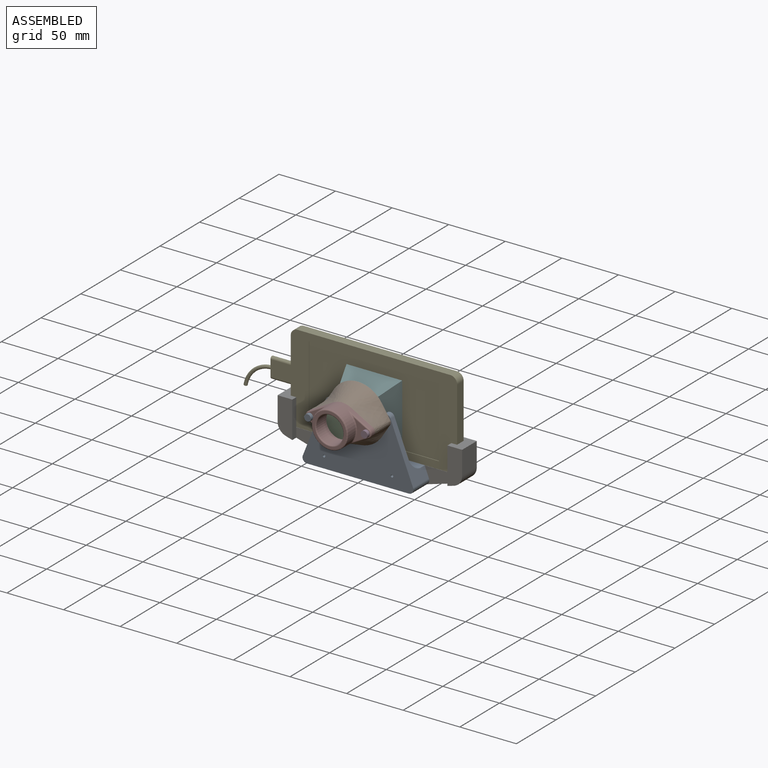
[diagram: assembled view]
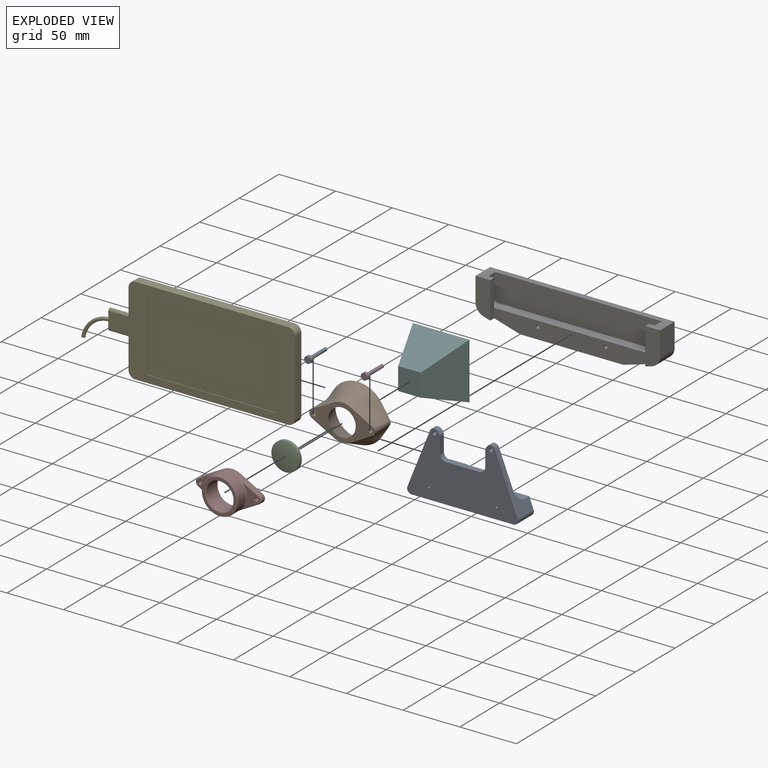
[diagram: exploded view]
GUIDED TOUR — MATED ASSEMBLY (Onshape document 5909d2e9807926100befe537, AutoMate assembly 5909d2e9807926100befe537_34f45d4617c0526ea24c7dd1_6c05a3f8506e0b4de2d8d72f_default)

This assembly has 9 components, labeled P0..P8 below (a component is one placed occurrence of a part; the same part can appear more than once), held together by 7 mates. A mate is a constraint between two components; its type names the relative motion it leaves free:
  FASTENED — locks the two components together rigidly (no relative motion).
Axis/direction vectors are unit vectors and 'through' points are millimeter coordinates, both in the assembly's world frame.

MATES
  1. FASTENED "Lens to Eyepiece": P7 <-> P2, direction (0.000, 1.000, 0.000) through (0.00, -23.00, 31.71) mm
  2. FASTENED "Fastened 3": P3 <-> P7, direction (0.000, 1.000, 0.000) through (25.00, -25.00, 31.71) mm
  3. FASTENED "Rear Tri to Slot": P0 <-> P6, direction (0.000, 1.000, 0.000) through (0.00, 20.00, -5.68) mm
  4. FASTENED "Fastened 4": P5 <-> P2, direction (0.000, -1.000, 0.000) through (0.00, -18.21, 31.71) mm
  5. FASTENED "Slot to Phone": P6 <-> P4, direction (0.000, 0.000, 1.000) through (0.00, 24.25, -5.68) mm
  6. FASTENED "Fastened 5": P1 <-> P7, direction (0.000, -1.000, 0.000) through (0.00, -20.00, 31.71) mm
  7. FASTENED "Fastened 2": P8 <-> P7, direction (0.000, 1.000, 0.000) through (-25.00, -25.00, 31.71) mm

ASSEMBLY ORDER
  1. P1 — the base component [order heuristic]
  2. P2 [order verified]
  3. P0 [order verified]
  4. P7 [order verified]
  5. P5 — core [order heuristic]
  6. P8 [order verified]
  7. P3 [order verified]
  8. P6 [order verified]
  9. P4 [order verified]
(P7 verified with a relaxed clearance tolerance: the source model stores slight part interference there.)
Order-tag legend:
  [order verified] — this step's position reverses a verified removal order: the component was checked to insert without passing through the ones already placed.
  [order heuristic] — the first 2 components form the assembly's core: parts whose collision-free extraction could not be verified, listed in mate-graph order.

Of the 9 components, 1 carries the full construction recipe — the FeatureScript program that regenerates the part's solid from scratch; the rest are supplied as boundary geometry only.
Each toured component is shown spotlighted twice — in the assembled view, then in the exploded view, where a leader line traces a displaced component back to its assembled socket (saturated green if recipe-attached, orange if geometry-only; every other component desaturated gray) — followed by its recipe or geometry summary and the mates that hold it.
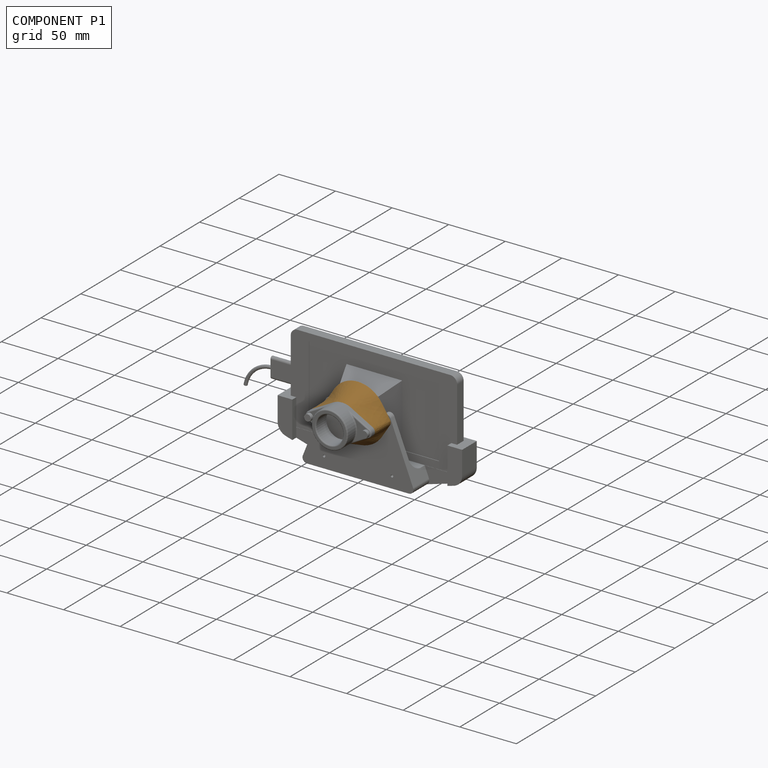
[diagram: component P1 — assembled]
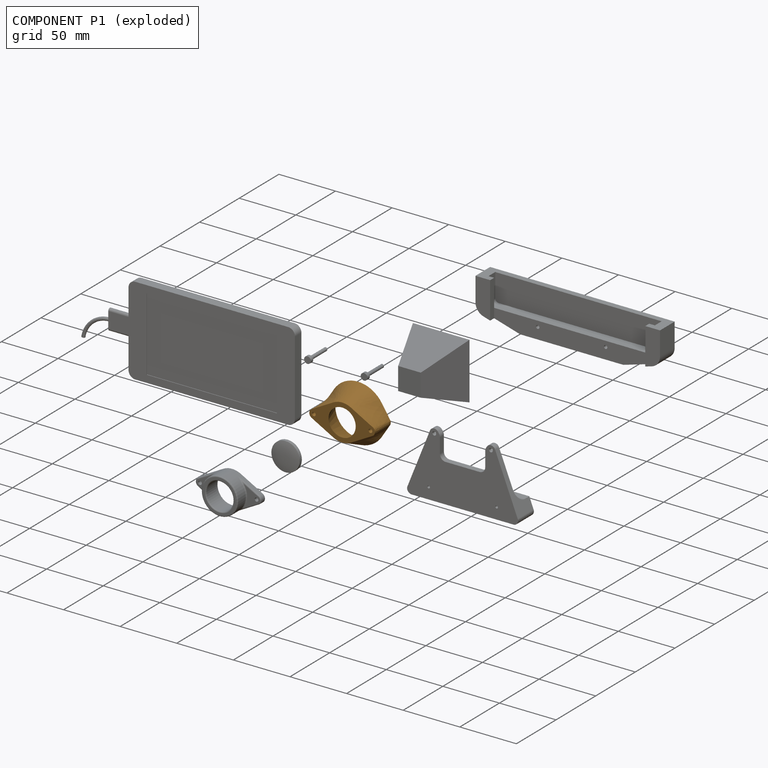
[diagram: component P1 — exploded]
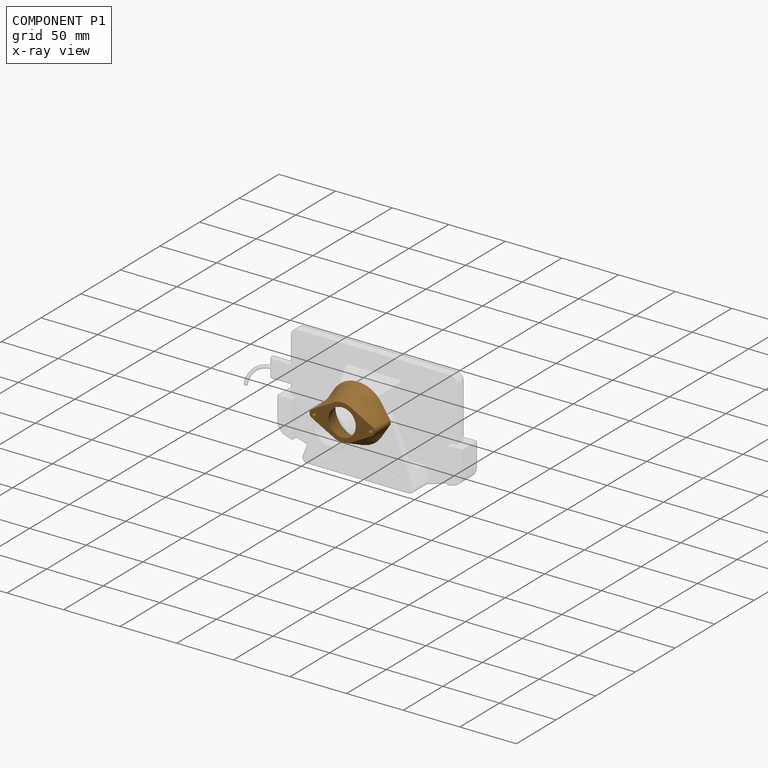
[diagram: component P1 — x-ray view]
COMPONENT P1 — geometry summary (no construction recipe available for this part):
  bounding box: 58.0 x 50.0 x 20.0 mm
  B-rep topology: 1 solid, 6 faces, 52 edges
  volume: 13882 mm^3 (24% of its bounding box)
  symmetry: 2-fold rotationally symmetric about the z axis; mirror-symmetric across its x mid-plane, y mid-plane
Held by: FASTENED mate "Fastened 5" to P7.
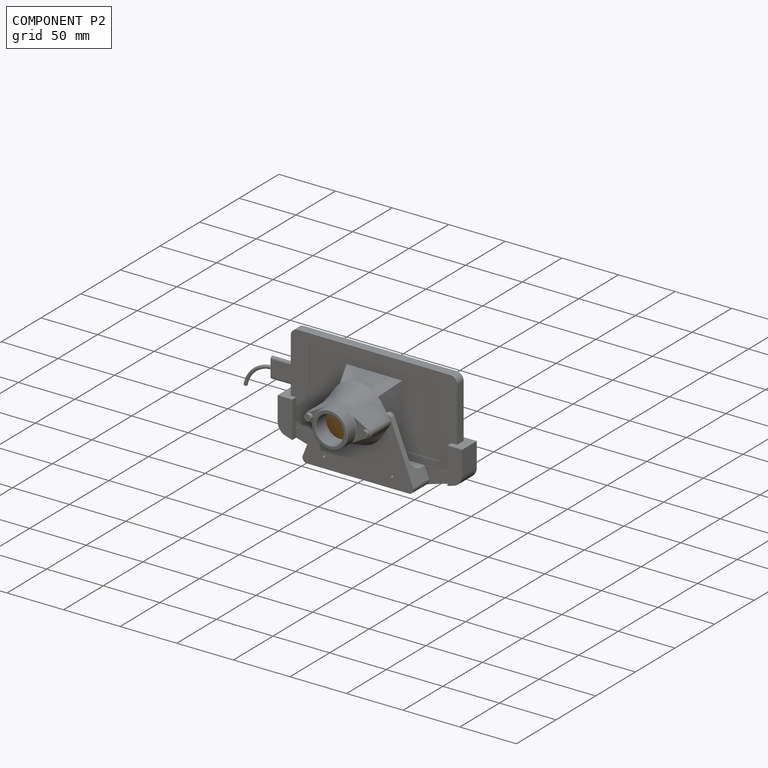
[diagram: component P2 — assembled]
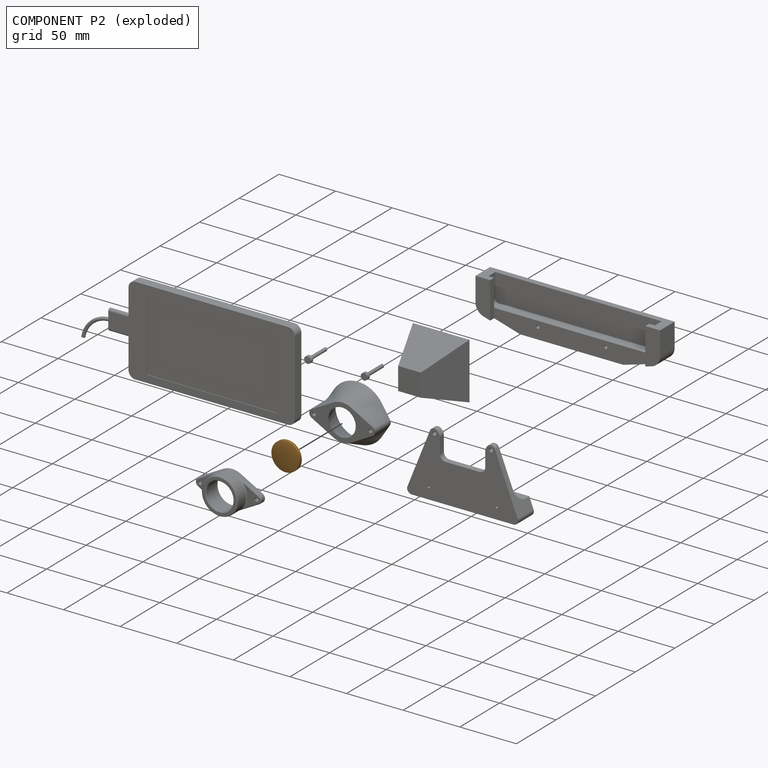
[diagram: component P2 — exploded]
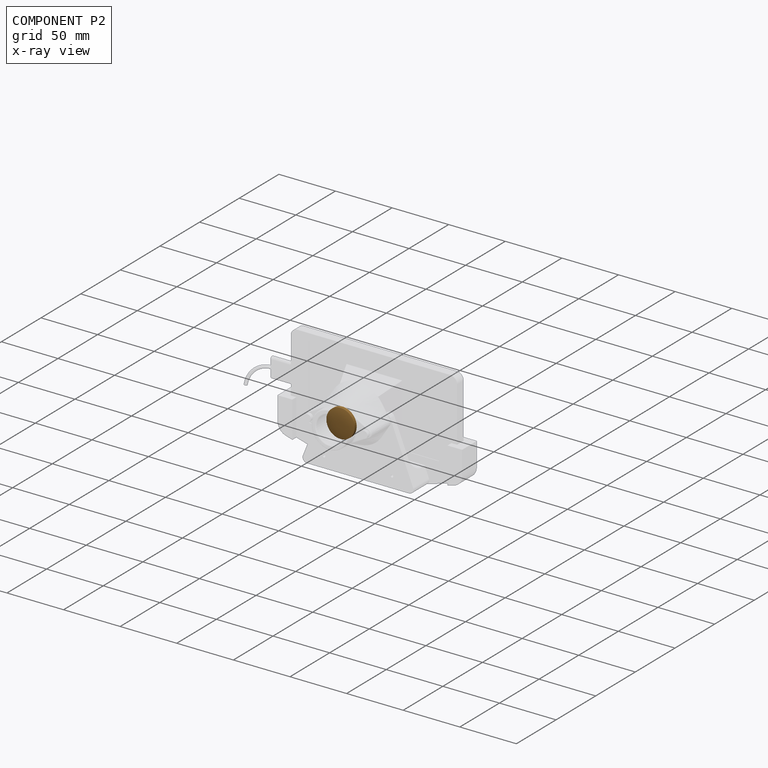
[diagram: component P2 — x-ray view]
COMPONENT P2 — geometry summary (no construction recipe available for this part):
  bounding box: 25.0 x 25.0 x 5.0 mm
  B-rep topology: 1 solid, 3 faces, 16 edges
  volume: 1977 mm^3 (63% of its bounding box)
  symmetry: 2-fold rotationally symmetric about the x axis; 2-fold rotationally symmetric about the y axis; revolution-symmetric about the z axis through its bounding-box center; mirror-symmetric across its x mid-plane, y mid-plane, z mid-plane
Held by: FASTENED mate "Lens to Eyepiece" to P7; FASTENED mate "Fastened 4" to P5.
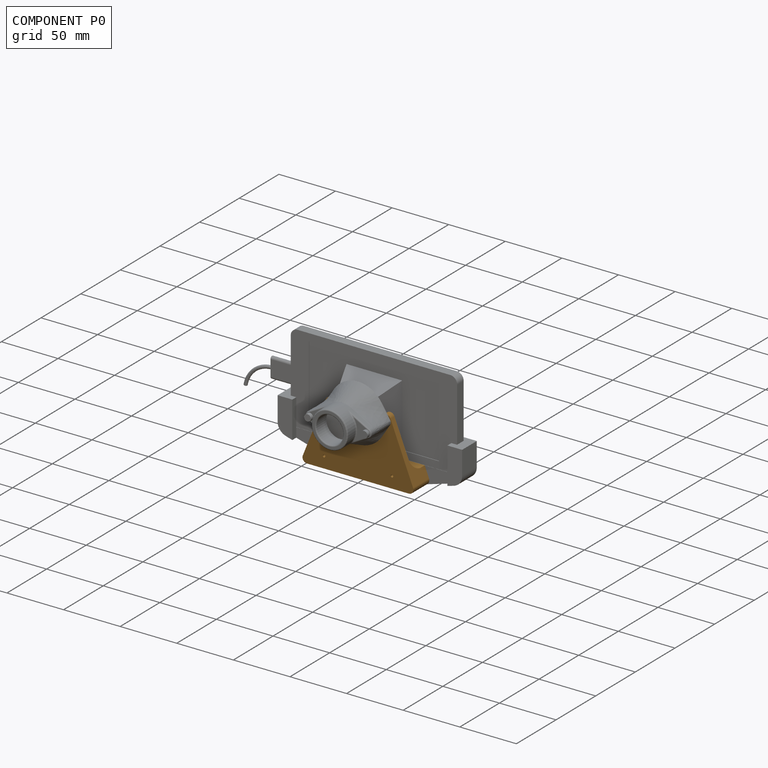
[diagram: component P0 — assembled]
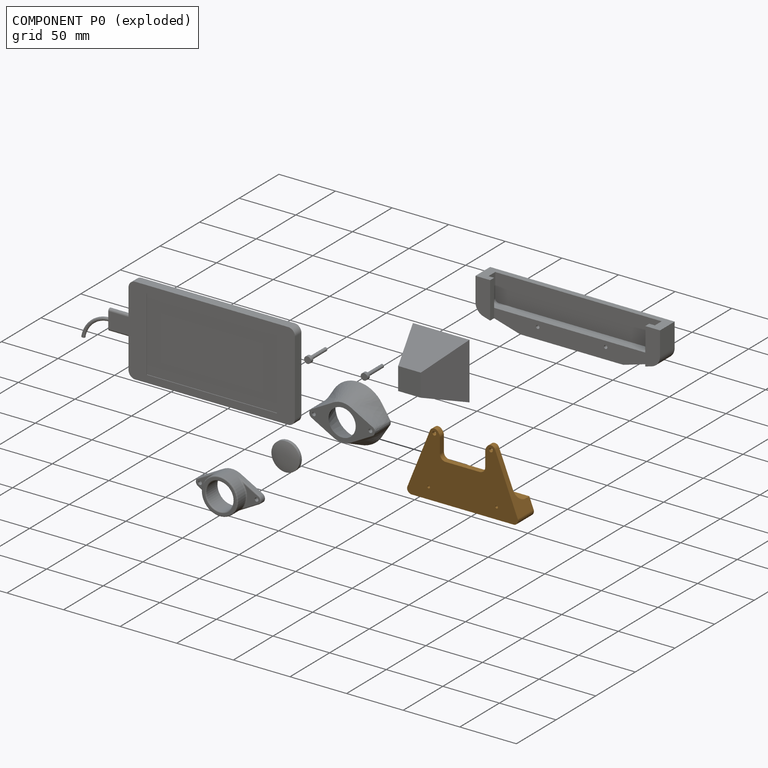
[diagram: component P0 — exploded]
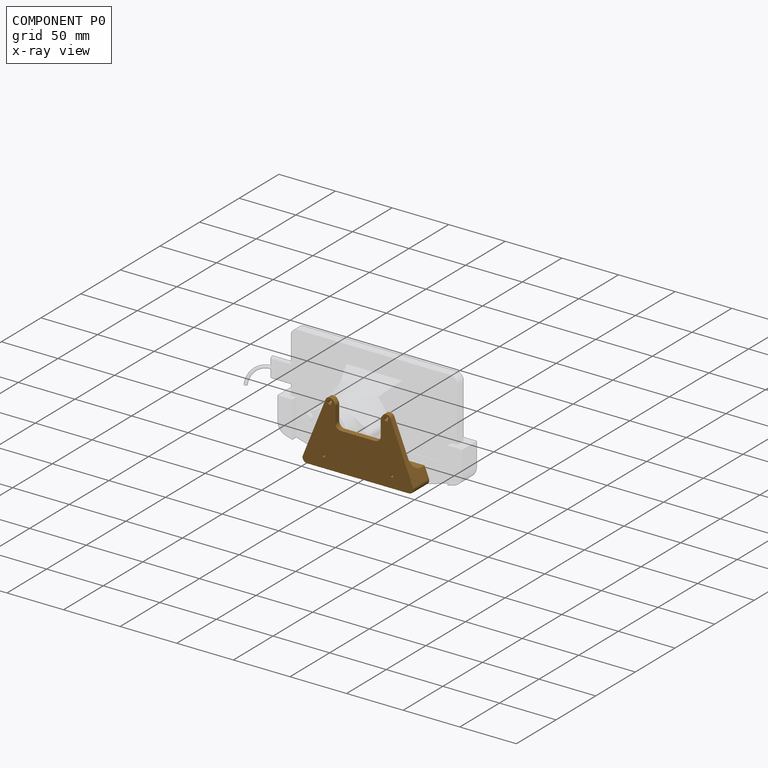
[diagram: component P0 — x-ray view]
COMPONENT P0 — geometry summary (no construction recipe available for this part):
  bounding box: 98.0 x 58.0 x 20.0 mm
  B-rep topology: 1 solid, 39 faces, 210 edges
  volume: 40751 mm^3 (36% of its bounding box)
  symmetry: mirror-symmetric across its x mid-plane
Held by: FASTENED mate "Rear Tri to Slot" to P6.
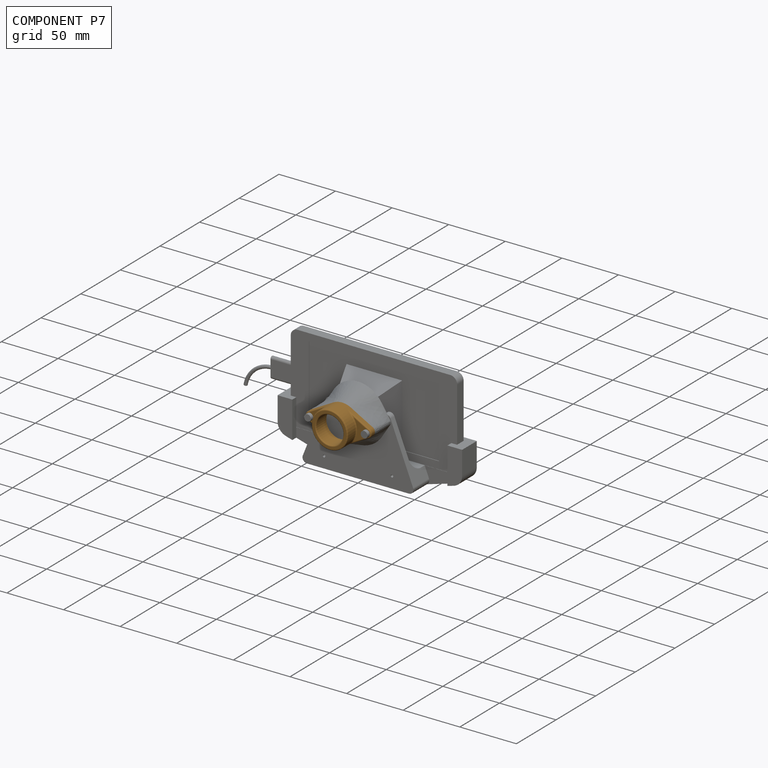
[diagram: component P7 — assembled]
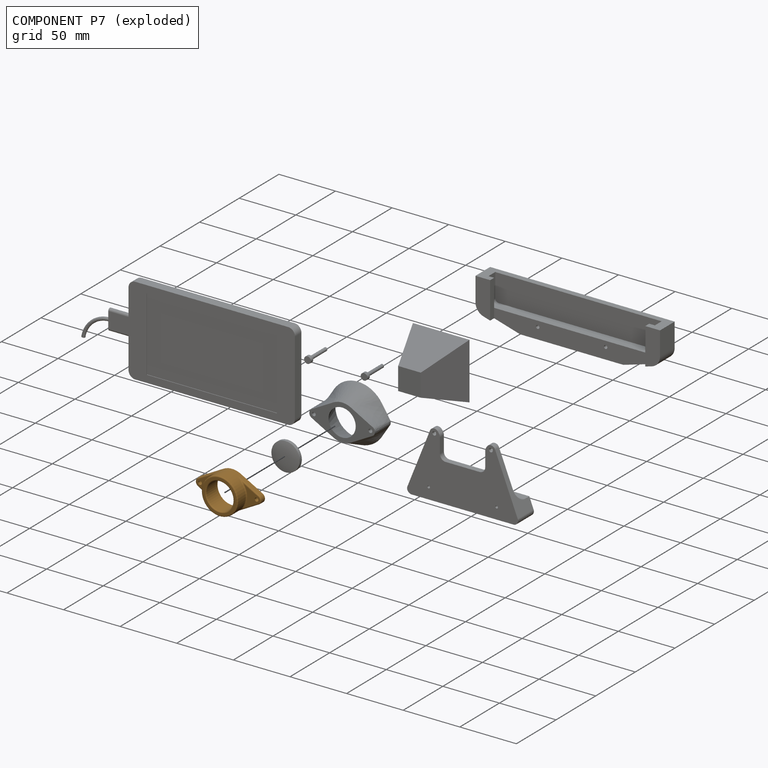
[diagram: component P7 — exploded]
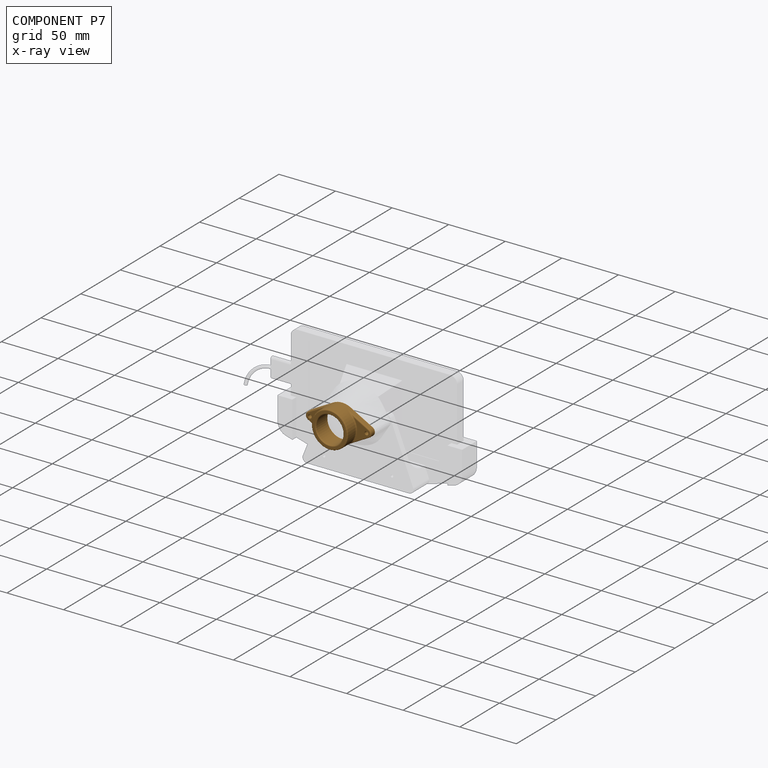
[diagram: component P7 — x-ray view]
COMPONENT P7 — geometry summary (no construction recipe available for this part):
  bounding box: 58.7 x 34.6 x 16.0 mm
  B-rep topology: 1 solid, 30 faces, 144 edges
  volume: 7119 mm^3 (22% of its bounding box)
  symmetry: 2-fold rotationally symmetric about the z axis; mirror-symmetric across its x mid-plane, y mid-plane
Held by: FASTENED mate "Lens to Eyepiece" to P2; FASTENED mate "Fastened 3" to P3; FASTENED mate "Fastened 5" to P1; FASTENED mate "Fastened 2" to P8.
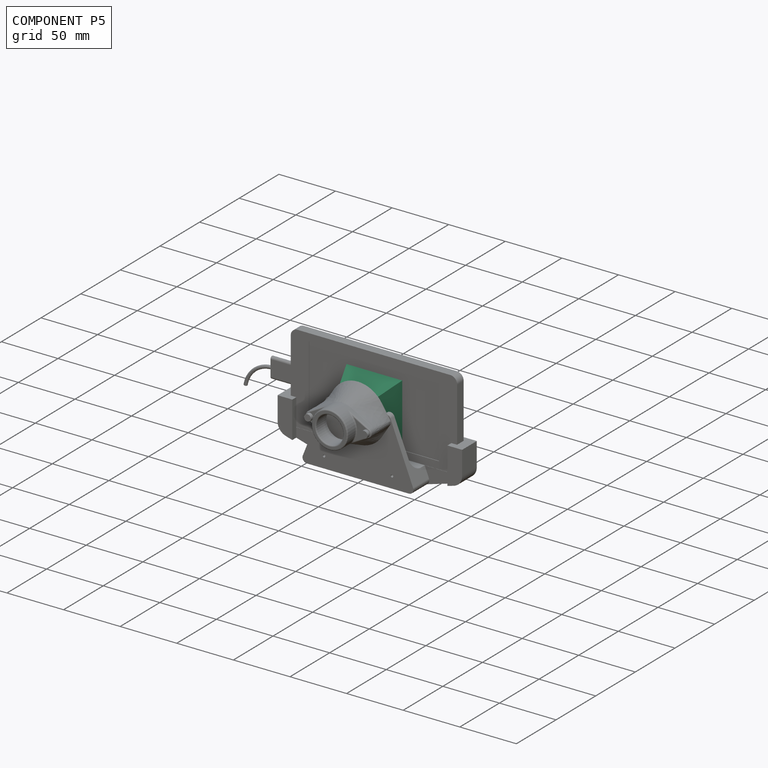
[diagram: component P5 — assembled]
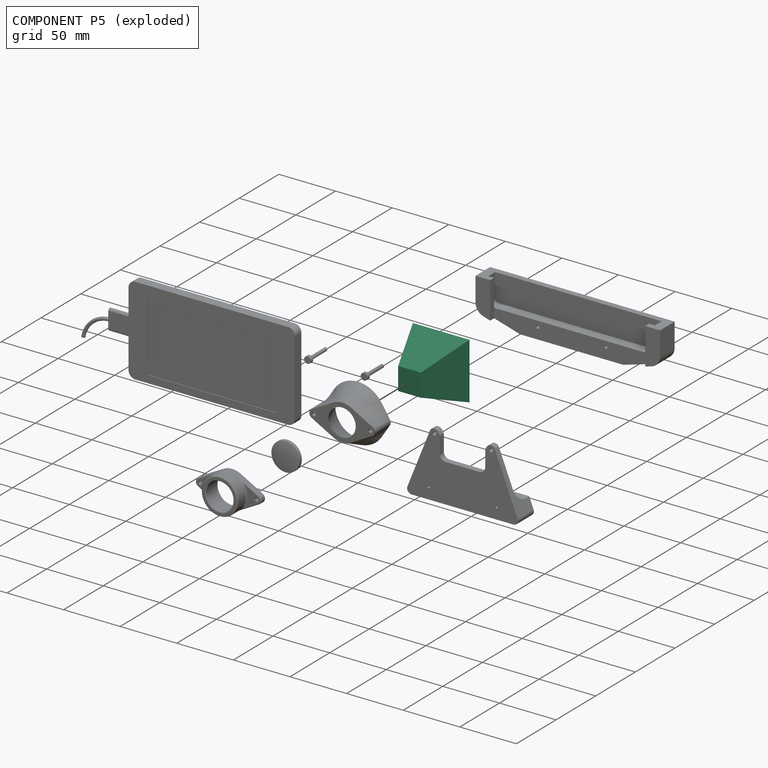
[diagram: component P5 — exploded]
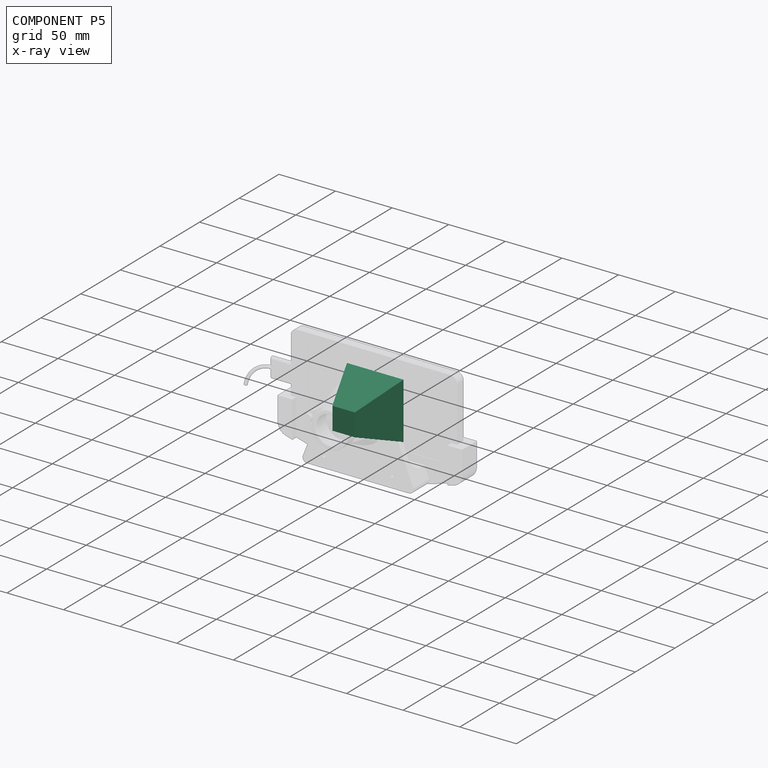
[diagram: component P5 — x-ray view]
COMPONENT P5 — recipe-attached (CADFS 00765007, mesh-verified: the recipe's output STEP matches this component's geometry to below the mesh-comparison resolution (tessellation chordal tolerance ~0.122 mm)).
Held by: FASTENED mate "Fastened 4" to P2.
Construction recipe (FeatureScript — the CAD program that rebuilds this solid; sketch coordinates are in the units given by the * unit suffixes, e.g. mm):

FeatureScript 1511;
import(path : "onshape/std/geometry.fs", version : "1511.0");
import(path : "onshape/std/common.fs", version : "1511.0");
const mm = millimeter;
const VERTEX = EntityType.VERTEX;
const EDGE = EntityType.EDGE;
const FACE = EntityType.FACE;
const BODY = EntityType.BODY;
function v(x, y){return vector(x, y);}
function OD(order){return orderDisambiguation(order);}
function OSD(set){return originalSetDisambiguation(set);}
function TD(topology){return topologyDisambiguation(topology);}
function TDD(query){return trueDependencyDisambiguation(query);}
function sQuery(a, b, c) {return sketchEntityQuery(a, b, c);}

annotation { "Feature Type Name" : "Feature", "Feature Type Description" : "" }
export const myFeature = defineFeature(function(context is Context, id is Id, definition is map)
    precondition{}
    {
        {
            var Q0;
            Q0=qCreatedBy(makeId("Top.planeOp"),FACE);
            var sketch = newSketch(context, id + "F0", { "sketchPlane" : qUnion([Q0])});
            skLineSegment(sketch, "E0.bottom", {"start": v(10, -10) * mm, "end": v(-10, -10) * mm});
            skLineSegment(sketch, "E0.top", {"start": v(10, 10) * mm, "end": v(-10, 10) * mm});
            skLineSegment(sketch, "E0.left", {"start": v(10, -10) * mm, "end": v(10, 10) * mm});
            skLineSegment(sketch, "E0.right", {"start": v(-10, -10) * mm, "end": v(-10, 10) * mm});
            skPoint(sketch, "E0.middle", {"position": v(0, 0) * mm});
            skSolve(sketch);
        }
        {
            var Q0;
            Q0=qCreatedBy(makeId("Top.planeOp"),FACE);
            cPlane(context, id + "F1", {"entities" : qUnion([Q0]), "cplaneType" : CPlaneType.OFFSET, "offset" : 40 * mm, "width" : 150 * mm, "height" : 150 * mm});
        }
        {
            var Q0;
            Q0=qCreatedBy(id+"F1.planeOp",FACE);
            var sketch = newSketch(context, id + "F2", { "sketchPlane" : qUnion([Q0])});
            skLineSegment(sketch, "E1.bottom", {"start": v(25, -25) * mm, "end": v(-25, -25) * mm});
            skLineSegment(sketch, "E1.top", {"start": v(25, 25) * mm, "end": v(-25, 25) * mm});
            skLineSegment(sketch, "E1.left", {"start": v(25, -25) * mm, "end": v(25, 25) * mm});
            skLineSegment(sketch, "E1.right", {"start": v(-25, -25) * mm, "end": v(-25, 25) * mm});
            skPoint(sketch, "E1.middle", {"position": v(0, 0) * mm});
            skSolve(sketch);
        }
        {
            var Q0;
            Q0=makeQuery(id+"F0.imprint","IMPRINT",FACE,{"disambiguationData":[TD([[makeQuery(id+"F0.imprint","IMPRINT",EDGE,{"derivedFrom":sQuery(id+"F0.wireOp",EDGE,"E0.bottom")}),-1.0]])]});
            var Q1;
            Q1=makeQuery(id+"F2.imprint","IMPRINT",FACE,{"disambiguationData":[TD([[makeQuery(id+"F2.imprint","IMPRINT",EDGE,{"derivedFrom":sQuery(id+"F2.wireOp",EDGE,"E1.bottom")}),-1.0]])]});
            loft(context, id + "F3", {"sheetProfilesArray" : [{ "sheetProfileEntities" : qUnion([Q0]) }, { "sheetProfileEntities" : qUnion([Q1]) }]});
        }
    });
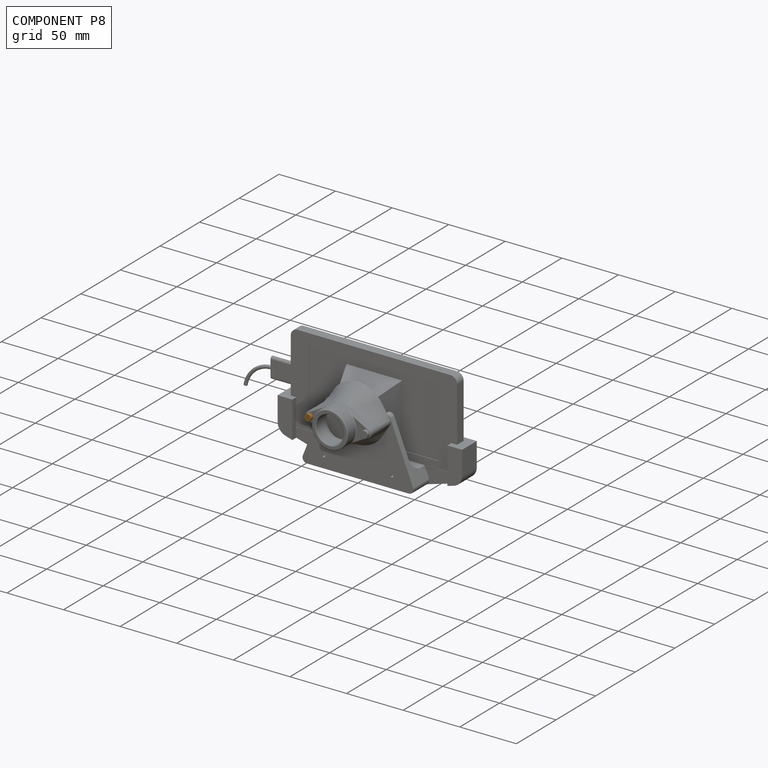
[diagram: component P8 — assembled]
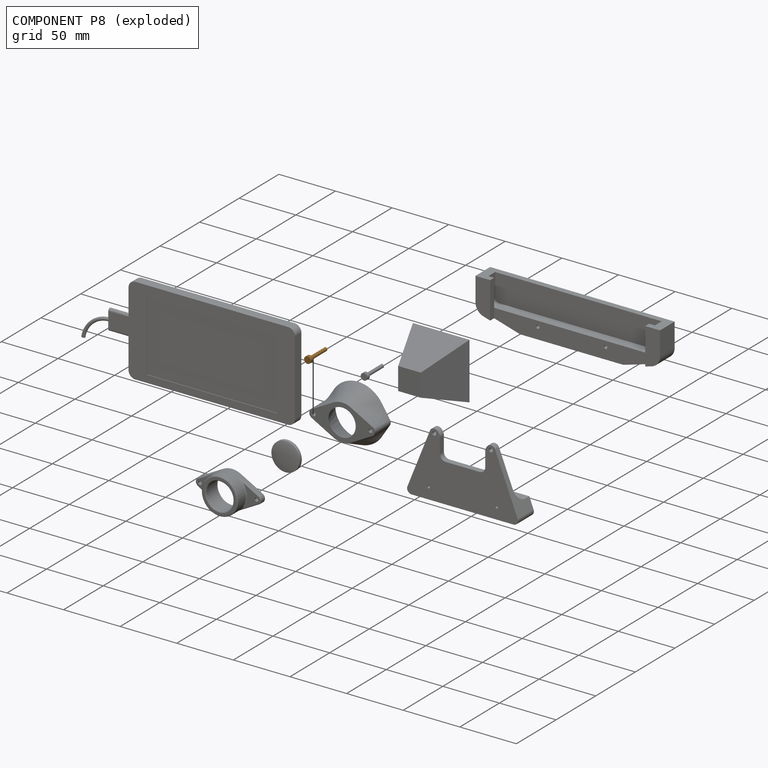
[diagram: component P8 — exploded]
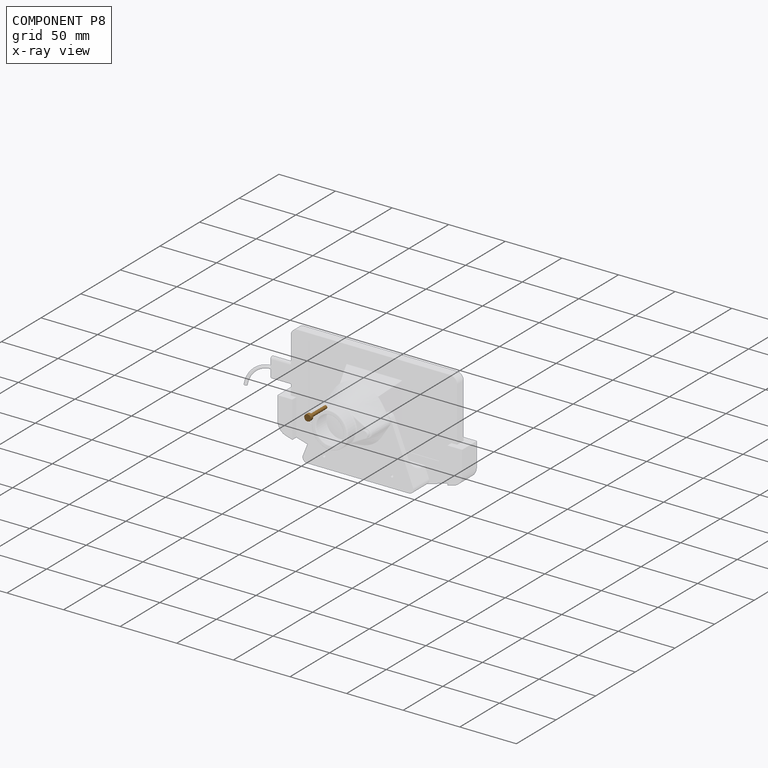
[diagram: component P8 — x-ray view]
COMPONENT P8 — geometry summary (no construction recipe available for this part):
  bounding box: 23.0 x 6.0 x 6.0 mm
  B-rep topology: 1 solid, 5 faces, 12 edges
  volume: 226 mm^3 (27% of its bounding box)
  symmetry: revolution-symmetric about the z axis through its bounding-box center; mirror-symmetric across its x mid-plane, y mid-plane
Held by: FASTENED mate "Fastened 2" to P7.
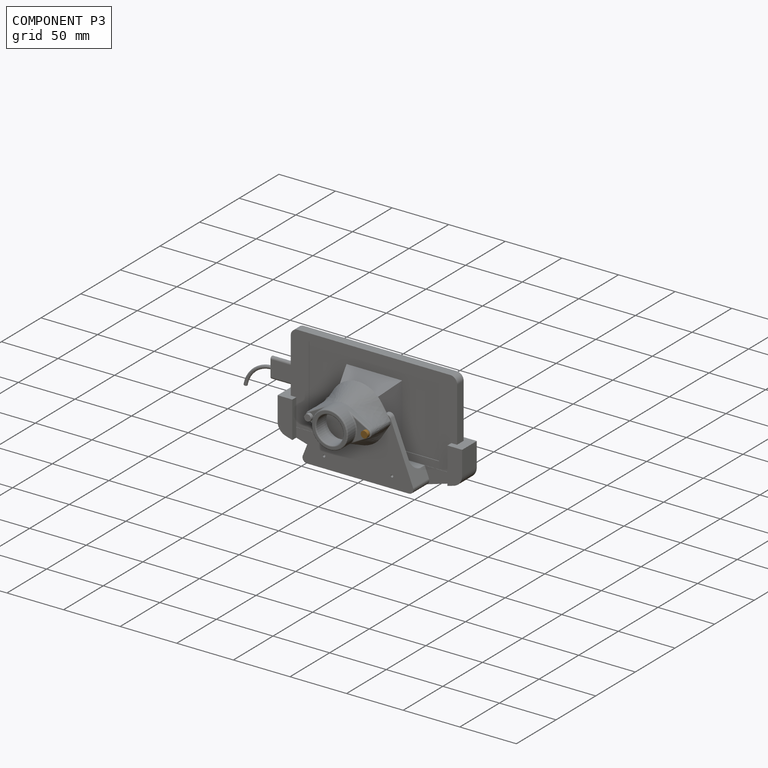
[diagram: component P3 — assembled]
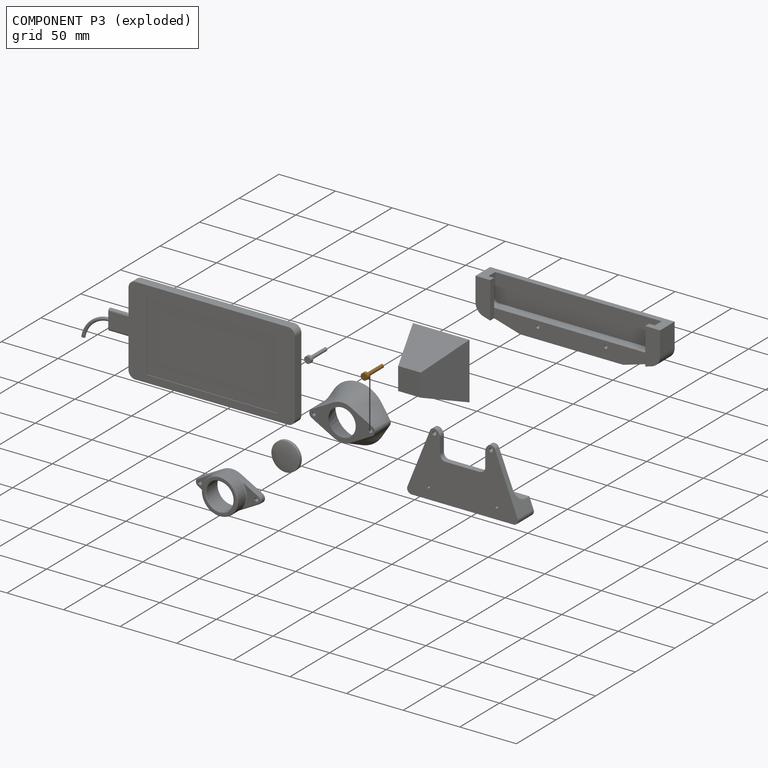
[diagram: component P3 — exploded]
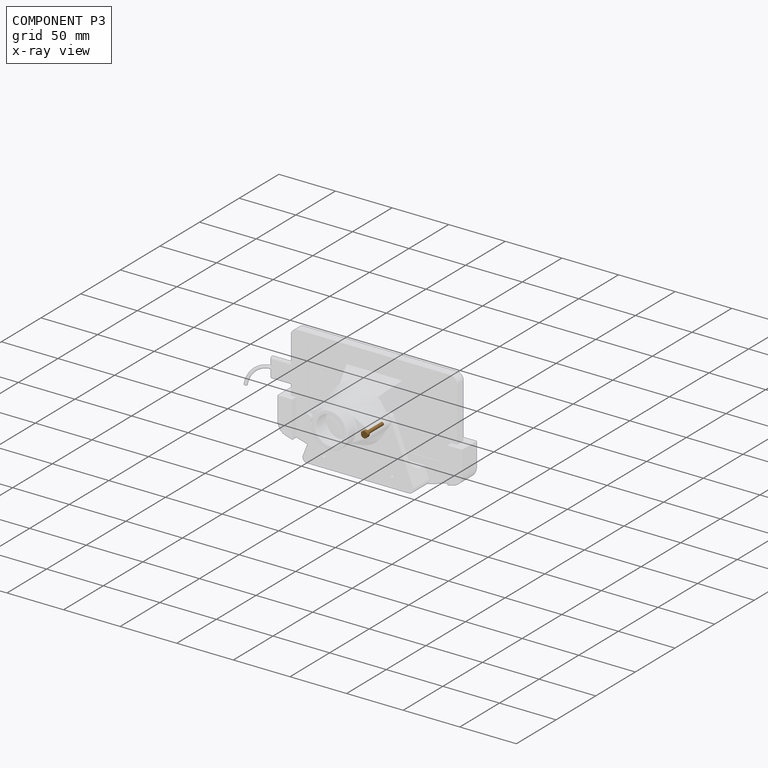
[diagram: component P3 — x-ray view]
COMPONENT P3 — geometry summary (no construction recipe available for this part):
  bounding box: 23.0 x 6.0 x 6.0 mm
  B-rep topology: 1 solid, 5 faces, 12 edges
  volume: 226 mm^3 (27% of its bounding box)
  symmetry: revolution-symmetric about the z axis through its bounding-box center; mirror-symmetric across its x mid-plane, y mid-plane
Held by: FASTENED mate "Fastened 3" to P7.
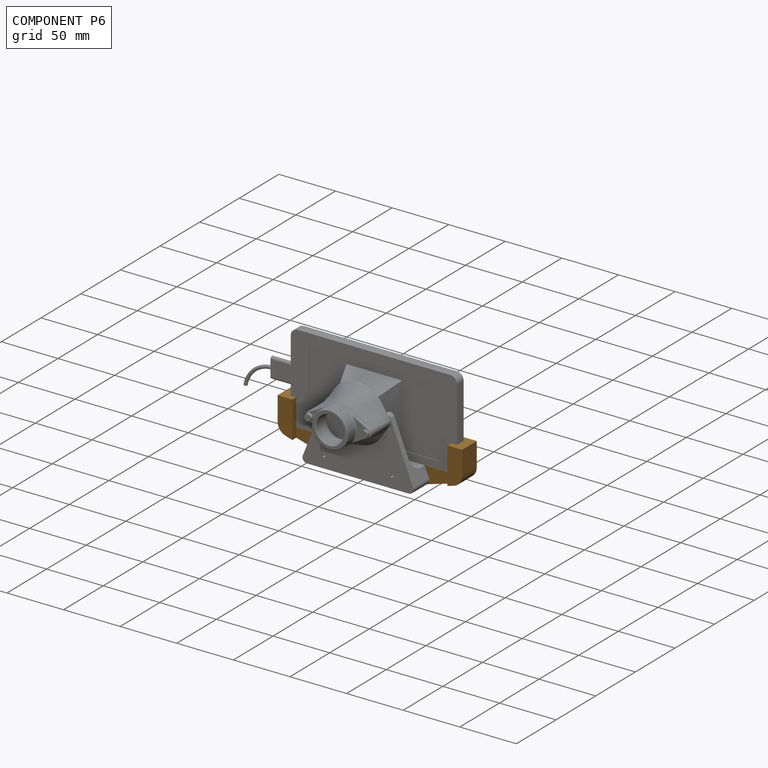
[diagram: component P6 — assembled]
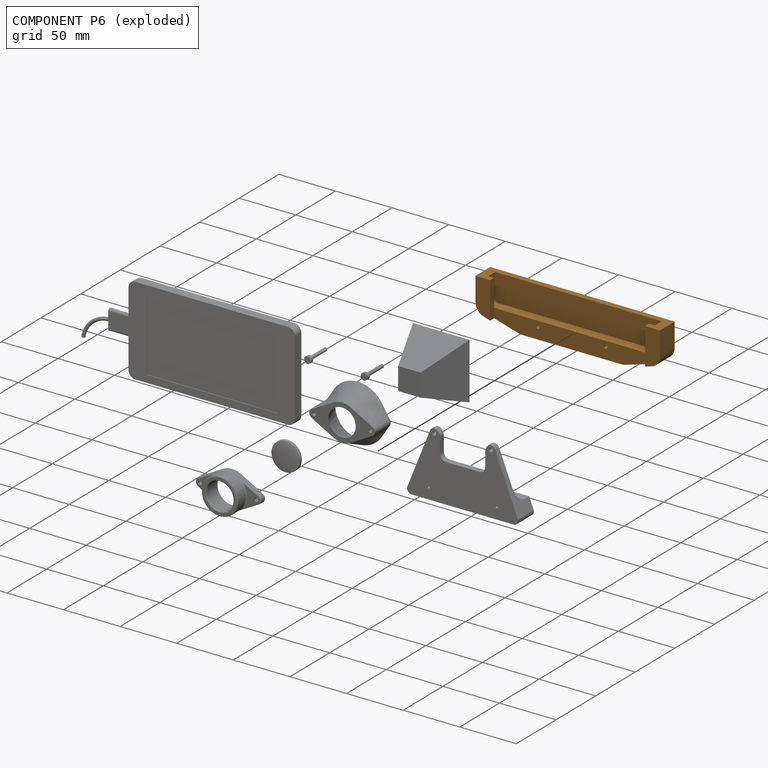
[diagram: component P6 — exploded]
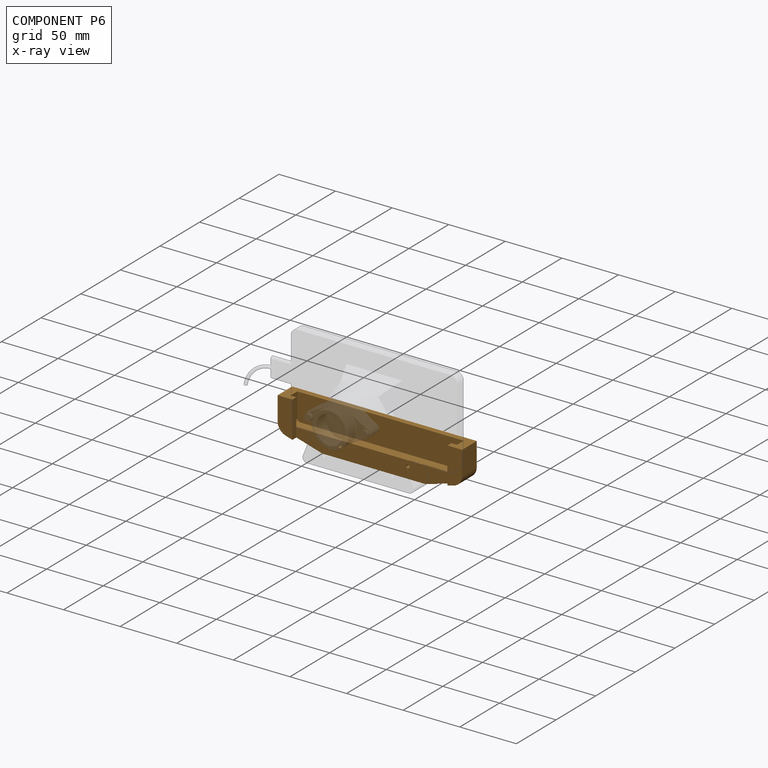
[diagram: component P6 — x-ray view]
COMPONENT P6 — geometry summary (no construction recipe available for this part):
  bounding box: 163.0 x 39.0 x 18.5 mm
  B-rep topology: 1 solid, 26 faces, 140 edges
  volume: 54136 mm^3 (46% of its bounding box)
  symmetry: mirror-symmetric across its x mid-plane
Held by: FASTENED mate "Rear Tri to Slot" to P0; FASTENED mate "Slot to Phone" to P4.
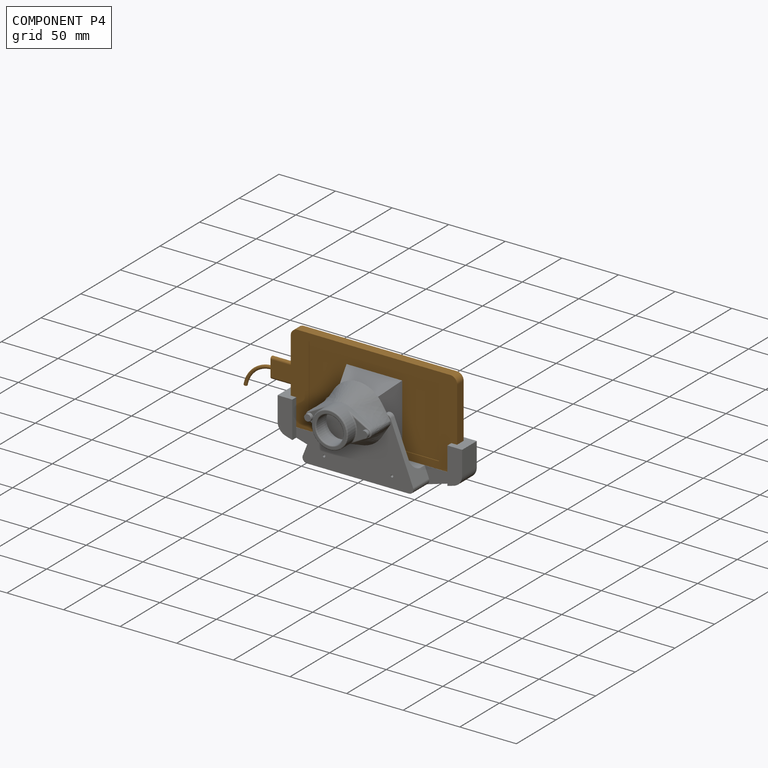
[diagram: component P4 — assembled]
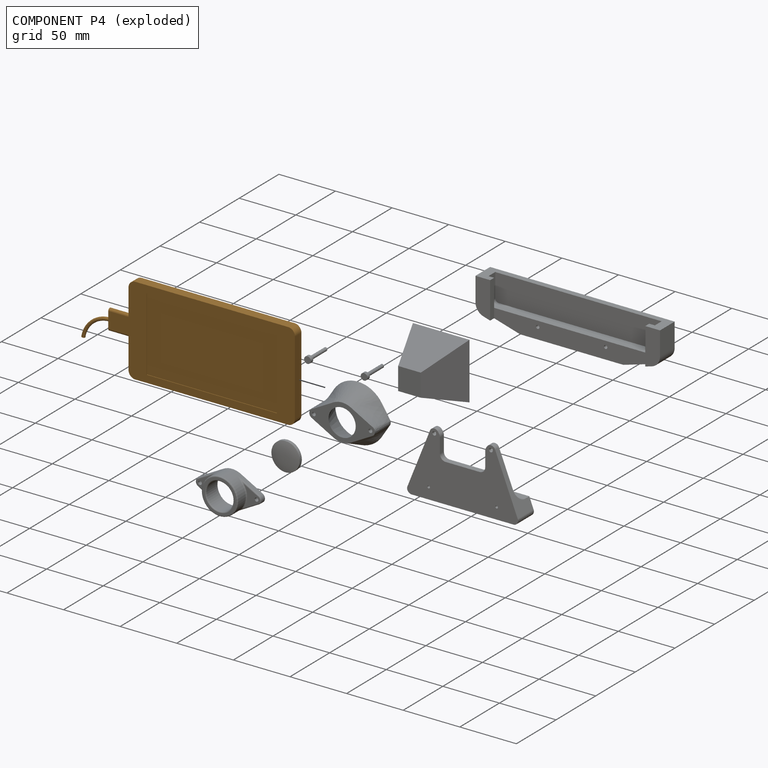
[diagram: component P4 — exploded]
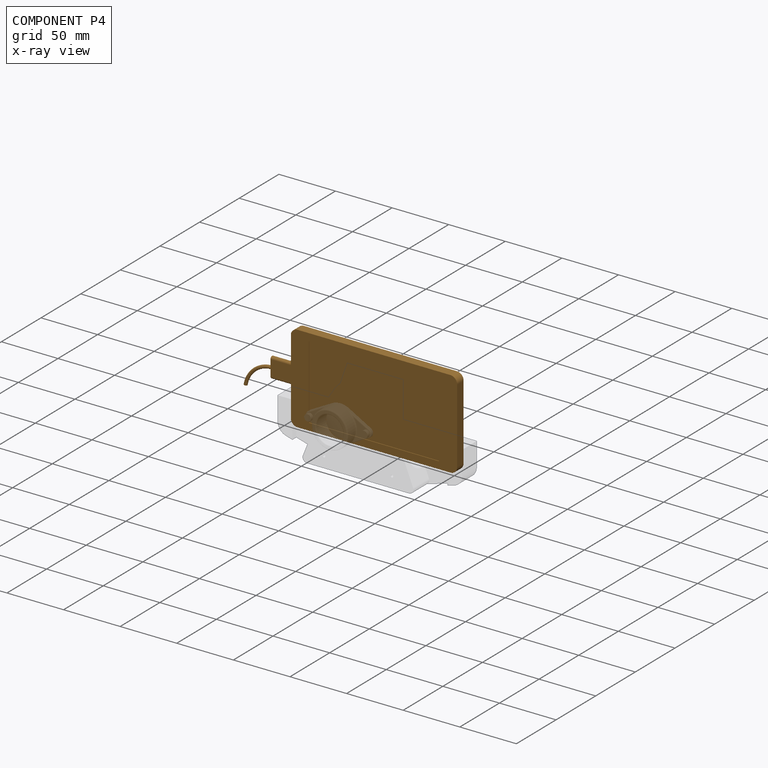
[diagram: component P4 — x-ray view]
COMPONENT P4 — geometry summary (no construction recipe available for this part):
  bounding box: 191.8 x 78.0 x 12.2 mm
  B-rep topology: 1 solid, 26 faces, 114 edges
  volume: 91651 mm^3 (50% of its bounding box)
Held by: FASTENED mate "Slot to Phone" to P6.
PROVENANCE & LICENSES
Assembly (occurrences, transforms, mates, per-part STEP geometry): AutoMate dataset, Zenodo record 7776208, CC0.
Construction recipes: CADFS (HuggingFace VladPyatov/CADFS, CC-BY-4.0, layered over the ABC dataset), FeatureScript reconstruction programs keyed by ABC model id.
Join: ABC meta listings map ABC model id -> Onshape documentId; within a shared document, parts are matched by geometric signature (bounding-box dims + volume at 0.1% relative tolerance, exact B-rep face/solid counts).
Verification: 1 of this assembly's 9 components carries a recipe attachment, and every attachment is mesh-verified: the CADFS STEP and the AutoMate member STEP were compared as meshes in their shared local frame (symmetric sampled-point-to-mesh distance); worst across the 1 attachment: below the mesh-comparison resolution (tessellation chordal tolerance ~0.122 mm) on a 81 mm part.
Renders: orthographic iso camera (az 35 / el 25); the floor grid conveys scale (grid pitch printed in each image; no ruler). In the exploded view each component is displaced by its stored offset vector: the offsets alone carry the explosion direction (mate normal/axis signs are not orientation cues and do not encode it), and separation distances are assigned per mate-chain, not proportionally to assembly-order depth.
